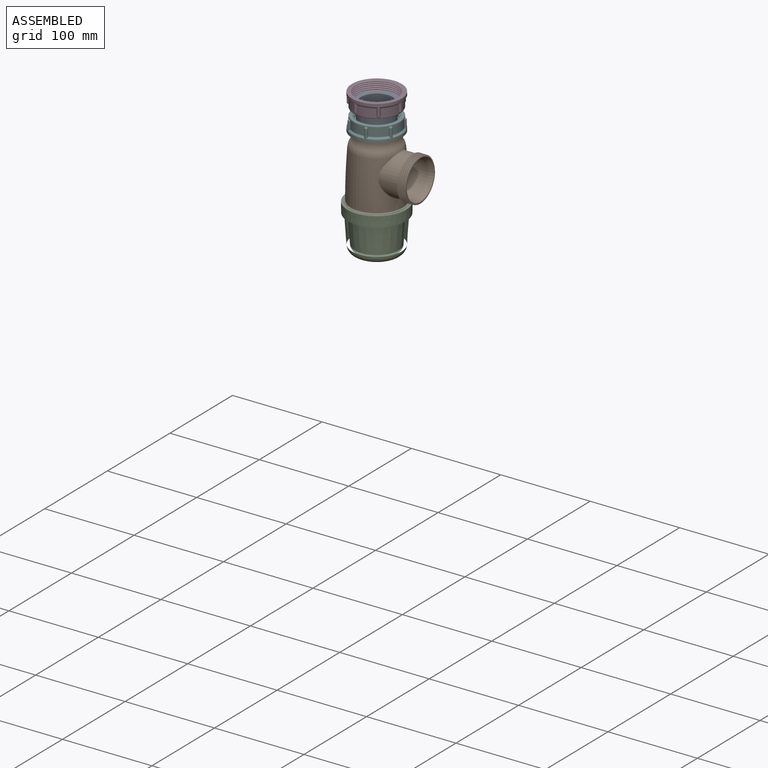
[diagram: assembled view]
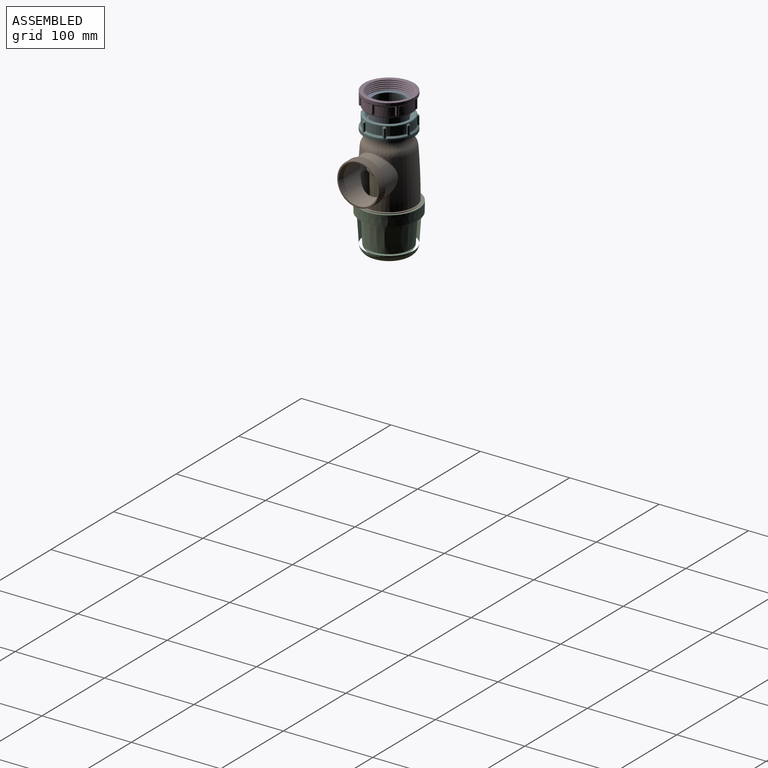
[diagram: assembled view, second angle]
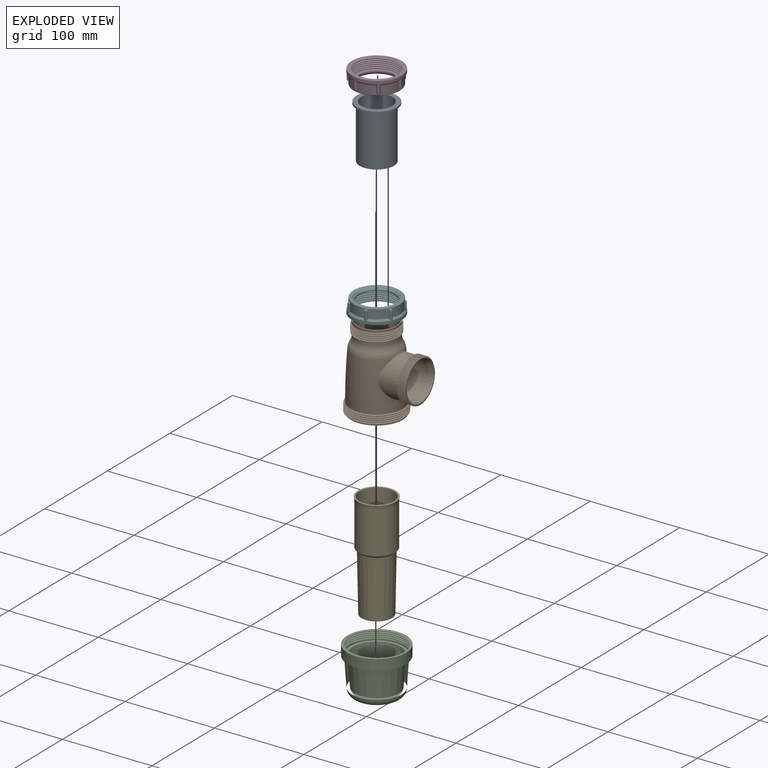
[diagram: exploded view]
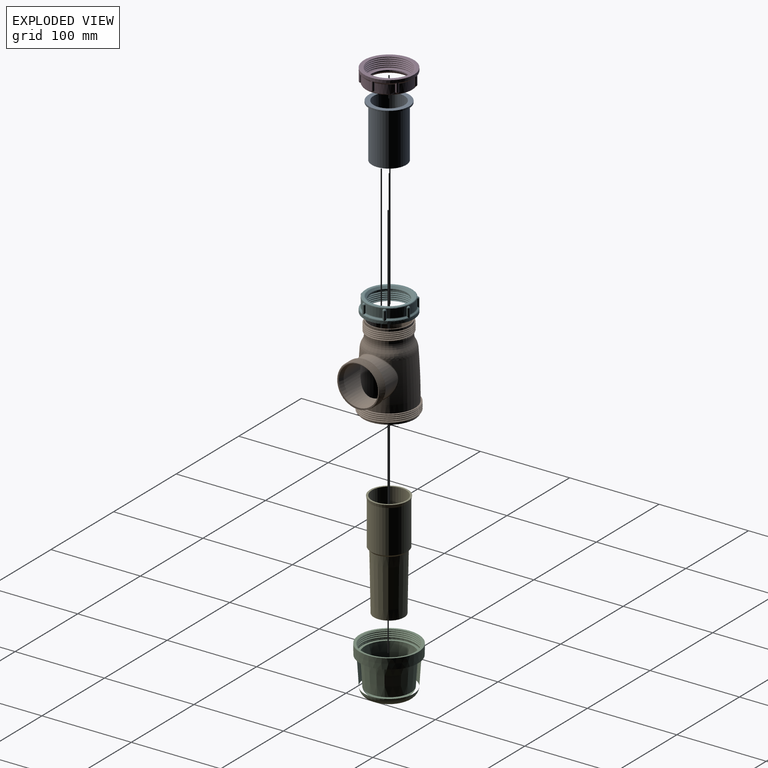
[diagram: exploded view, second angle]
ASSEMBLY  parts=6 mates=5
PART A: 6 faces, bbox 45x45x60 mm
  f0: cylinder r=19.15mm len=58.18mm, axis (0,0,-1), area 7000.9mm2, adj f1,f5
  f1: cone r=17.3mm half-angle=88.9deg, axis (0,0,-1), area 211.9mm2, adj f0,f2
  f2: cylinder r=17.3mm len=60mm, axis (0,0,-1), area 6521.9mm2, adj f1,f3
  f3: plane 45x45mm, normal (0,0,1), area 650.2mm2, adj f2,f4
  f4: cylinder r=22.5mm len=45mm, axis (0,0,-1), area 261.5mm2, adj f3,f5
  f5: plane 45x45mm, normal (0,0,-1), area 438.3mm2, adj f0,f4
PART B: 39 faces, bbox 81.5x71.9x94.5 mm
  f0: revolved ~53.8x52.85mm, area 9498.5mm2, adj f1,f10,f37
  f1: torus R=9.88mm, axis (0,0,-1), area 993.4mm2, adj f0,f11,f38
  f2: torus R=12.93mm, axis (0,0,-1), area 1052.4mm2, adj f3,f19,f36
  f3: revolved ~58x58mm, area 10173.7mm2, adj f2,f5,f35
  f4: plane 48.23x48.11mm, normal (0,0,-1), area 106.7mm2, adj f17,f18,f23,f24,f25
  f5: plane 60.86x60.76mm, normal (0,0,1), area 209mm2, adj f3,f6,f20,f21,f22
  f6: cylinder r=30.75mm len=61.5mm, axis (0,0,-1), area 231.9mm2, adj f5,f7,f21,f22
  f7: plane 61.07x60.96mm, normal (0,0,-1), area 209.1mm2, adj f6,f8,f20,f21,f22
  f8: cylinder r=29mm len=58mm, axis (0,0,-1), area 328mm2, adj f7,f9
  f9: plane 58x58mm, normal (0,0,-1), area 377.2mm2, adj f8,f10
  f10: cylinder r=26.85mm len=53.7mm, axis (0,0,-1), area 1889.5mm2, adj f0,f9
  f11: torus R=36.44mm, axis (0,0,-1), area 1045.3mm2, adj f1,f12
  f12: cylinder r=21.3mm len=42.6mm, axis (0,0,-1), area 1561.9mm2, adj f11,f13
  f13: cone r=22mm half-angle=11.5deg, axis (0,0,1), area 476.1mm2, adj f12,f14
  f14: plane 46x46mm, normal (0,0,1), area 141.4mm2, adj f13,f15
  f15: cylinder r=23mm len=46mm, axis (0,0,-1), area 361.3mm2, adj f14,f16
  f16: plane 48.34x48.32mm, normal (0,0,1), area 106.6mm2, adj f15,f17,f23,f24,f25
  f17: cylinder r=24.35mm len=48.7mm, axis (0,0,-1), area 186.9mm2, adj f4,f16,f24,f25
  f18: cylinder r=23mm len=46mm, axis (0,0,-1), area 433.5mm2, adj f4,f19
  f19: torus R=37.11mm, axis (0,0,-1), area 1137mm2, adj f2,f18
  f20: bspline ~68.51x59.34mm, area 489.1mm2, adj f5,f7,f21,f22
  f21: bspline ~71.01x61.5mm, area 1114.9mm2, adj f5,f6,f7,f20
  f22: bspline ~71.01x61.5mm, area 1114mm2, adj f5,f6,f7,f20
  f23: bspline ~53.74x46.54mm, area 391.3mm2, adj f4,f16,f24,f25
  f24: bspline ~56.24x48.7mm, area 898.9mm2, adj f4,f16,f17,f23
  f25: bspline ~56.24x48.7mm, area 896.9mm2, adj f4,f16,f17,f23
  f26: cylinder r=22.25mm len=44.5mm, axis (1,0,0), area 2151.9mm2, adj f29,f35,f36
  f27: cylinder r=20.35mm len=40.7mm, axis (1,0,0), area 2748.8mm2, adj f30,f37,f38
  f28: cylinder r=23.85mm len=47.7mm, axis (1,0,0), area 190.9mm2, adj f29,f31,f33,f34
  f29: plane 47.18x47.07mm, normal (-1,0,0), area 139.5mm2, adj f26,f28,f32,f33,f34
  f30: cone r=22.05mm half-angle=17.4deg, axis (1,0,0), area 759.3mm2, adj f27,f31
  f31: plane 47.18x47.07mm, normal (1,0,0), area 167.3mm2, adj f28,f30,f32,f33,f34
  f32: bspline ~52.58x45.54mm, area 399.6mm2, adj f29,f31,f33,f34
  f33: bspline ~55.08x47.7mm, area 915.3mm2, adj f28,f29,f31,f32
  f34: bspline ~55.08x47.7mm, area 915.9mm2, adj f28,f29,f31,f32
  f35: bspline ~44.91x43.78mm, area 135mm2, adj f3,f26,f36
  f36: bspline ~23.25x4.44mm, area 28.6mm2, adj f2,f26,f35
  f37: bspline ~41.88x41.13mm, area 137.2mm2, adj f0,f27,f38
  f38: bspline ~14.29x2.16mm, area 15.5mm2, adj f1,f27,f37
PART C: 23 faces, bbox 66.6x72.3x53.7 mm
  f0: plane 66.61x66.61mm, normal (0,0,1), area 518.8mm2, adj f1,f9,f10,f11,f17
  f1: cone r=32.85mm half-angle=0.7deg, axis (0,0,1), area 2368.4mm2, adj f0,f2
  f2: plane 65.4x65.4mm, normal (0,0,-1), area 531.8mm2, adj f1,f3
  f3: cone r=30mm half-angle=3.9deg, axis (0,0,1), area 5824.4mm2, adj f2,f4
  f4: torus R=18.7mm, axis (0,0,-1), area 2097.7mm2, adj f3,f5
  f5: plane 37.39x37.39mm, normal (0,0,-1), area 1098.1mm2, adj f4
  f6: bspline ~61.41x61.16mm, area 127.1mm2, adj f8,f10,f12,f13,f18
  f7: bspline ~61.41x61.16mm, area 127.1mm2, adj f8,f9,f12,f18
  f8: bspline ~61.6x61.34mm, area 55.3mm2, adj f6,f7,f11,f18
  f9: bspline ~71.2x61.67mm, area 914.5mm2, adj f0,f7,f11,f13,f14,f15,f16
  f10: bspline ~71.2x61.67mm, area 810.2mm2, adj f0,f6,f11,f14,f15,f16,f17
  f11: bspline ~71.41x61.85mm, area 203.8mm2, adj f0,f8,f9,f10
  f12: cylinder r=29.75mm len=59.5mm, axis (0,0,1), area 241mm2, adj f6,f7,f13,f18,f22
  f13: cylinder r=29.75mm len=59.5mm, axis (0,0,1), area 147.4mm2, adj f6,f9,f12,f14
  f14: cylinder r=29.75mm len=59.5mm, axis (0,0,1), area 93.4mm2, adj f9,f10,f13,f15
  f15: cylinder r=29.75mm len=59.5mm, axis (0,0,1), area 93.5mm2, adj f9,f10,f14,f16
  f16: cylinder r=29.75mm len=59.5mm, axis (0,0,1), area 93.5mm2, adj f9,f10,f15,f17
  f17: cylinder r=29.75mm len=29.75mm, axis (0,0,1), area 11.7mm2, adj f0,f10,f16
  f18: plane 0.35x0.15mm, normal (0,-1,0), area 0mm2, adj f6,f7,f8,f12
  f19: plane 37.39x37.39mm, normal (0,0,1), area 1098.1mm2, adj f20
  f20: torus R=18.7mm, axis (0,0,-1), area 1240mm2, adj f19,f21
  f21: cone r=24.56mm half-angle=3.9deg, axis (0,0,1), area 5387.5mm2, adj f20,f22
  f22: plane 59.5x59.5mm, normal (0,0,1), area 515.7mm2, adj f12,f21
PART D: 56 faces, bbox 61.3x61.3x17.9 mm
  f0: cylinder r=26mm len=52mm, axis (0,0,-1), area 1340.6mm2, adj f1,f4,f7,f10,f13,f17,f32,f33
  f1: torus R=27mm, axis (0,0,-1), area 18.3mm2, adj f0,f3,f35,f47
  f2: torus R=26.85mm, axis (0,0,1), area 21.9mm2, adj f3,f25,f35,f47
  f3: cone r=27.85mm half-angle=52.9deg, axis (0,0,-1), area 28mm2, adj f1,f2,f35,f47
  f4: torus R=27mm, axis (0,0,-1), area 18.3mm2, adj f0,f24,f45,f47
  f5: torus R=26.85mm, axis (0,0,1), area 21.9mm2, adj f24,f25,f45,f47
  f6: cone r=27.85mm half-angle=52.9deg, axis (0,0,-1), area 28mm2, adj f7,f8,f43,f45
  f7: torus R=27mm, axis (0,0,-1), area 18.3mm2, adj f0,f6,f43,f45
  f8: torus R=26.85mm, axis (0,0,1), area 21.9mm2, adj f6,f25,f43,f45
  f9: cone r=27.85mm half-angle=52.9deg, axis (0,0,-1), area 28mm2, adj f13,f14,f41,f43
  f10: torus R=27mm, axis (0,0,-1), area 18.3mm2, adj f0,f12,f39,f41
  f11: torus R=26.85mm, axis (0,0,1), area 21.9mm2, adj f12,f25,f39,f41
  f12: cone r=27.85mm half-angle=52.9deg, axis (0,0,-1), area 28mm2, adj f10,f11,f39,f41
  f13: torus R=27mm, axis (0,0,-1), area 18.3mm2, adj f0,f9,f41,f43
  f14: torus R=26.85mm, axis (0,0,1), area 21.9mm2, adj f9,f25,f41,f43
  f15: cone r=27.85mm half-angle=52.9deg, axis (0,0,-1), area 28mm2, adj f17,f18,f37,f39
  f16: cone r=27.85mm half-angle=52.9deg, axis (0,0,-1), area 28mm2, adj f33,f34,f35,f37
  f17: torus R=27mm, axis (0,0,-1), area 18.3mm2, adj f0,f15,f37,f39
  f18: torus R=26.85mm, axis (0,0,1), area 21.9mm2, adj f15,f25,f37,f39
  f19: plane 56.49x56.49mm, normal (0,0,-1), area 652.2mm2, adj f25,f26,f27,f28,f29
  f20: plane 48.6x48.44mm, normal (0,0,-1), area 508.8mm2, adj f21,f26,f27,f28,f29
  f21: cylinder r=20.15mm len=40.3mm, axis (0,0,-1), area 156.5mm2, adj f20,f30
  f22: cone r=20.15mm half-angle=45deg, axis (0,0,1), area 334.3mm2, adj f30,f31
  f23: plane 50x50mm, normal (0,0,1), area 314mm2, adj f31,f32
  f24: cone r=27.85mm half-angle=52.9deg, axis (0,0,-1), area 28mm2, adj f4,f5,f45,f47
  f25: cylinder r=27.85mm len=55.7mm, axis (0,0,-1), area 542.9mm2, adj f2,f5,f8,f11,f14,f18,f19,f34
  f26: bspline ~56.43x48.87mm, area 1135.1mm2, adj f19,f20,f28,f29
  f27: bspline ~56.43x48.87mm, area 1135.1mm2, adj f19,f20,f28,f29
  f28: bspline ~56.64x49.05mm, area 269.7mm2, adj f19,f20,f26,f27
  f29: cylinder r=23.35mm len=46.7mm, axis (0,0,1), area 455.7mm2, adj f19,f20,f26,f27
  f30: torus R=21.15mm, axis (0,0,1), area 99.9mm2, adj f21,f22
  f31: torus R=22.91mm, axis (0,0,1), area 111.2mm2, adj f22,f23
  f32: torus R=25mm, axis (0,0,1), area 253mm2, adj f0,f23
  f33: torus R=27mm, axis (0,0,-1), area 18.3mm2, adj f0,f16,f35,f37
  f34: torus R=26.85mm, axis (0,0,1), area 21.9mm2, adj f16,f25,f35,f37
  f35: cylinder r=1.85mm len=9.9mm, axis (0,0,1), area 53.1mm2, adj f0,f1,f2,f3,f16,f33,f34,f54
  f36: plane 1.5x1.25mm, normal (0,0,1), area 0.1mm2, adj f0,f54
  f37: cylinder r=1.85mm len=9.9mm, axis (0,0,1), area 53.1mm2, adj f0,f15,f16,f17,f18,f33,f34,f55
  f38: plane 0.45x0.41mm, normal (0,0,1), area 0.1mm2, adj f0,f55
  f39: cylinder r=1.85mm len=9.9mm, axis (0,0,1), area 53.1mm2, adj f0,f10,f11,f12,f15,f17,f18,f49
  f40: plane 0.49x0.31mm, normal (0,0,1), area 0.1mm2, adj f0,f49
  f41: cylinder r=1.85mm len=9.9mm, axis (0,0,1), area 53.1mm2, adj f0,f9,f10,f11,f12,f13,f14,f50
  f42: plane 0.48x0.36mm, normal (0,0,1), area 0.1mm2, adj f0,f50
  f43: cylinder r=1.85mm len=9.9mm, axis (0,0,1), area 53.1mm2, adj f0,f6,f7,f8,f9,f13,f14,f51
  f44: plane 0.48x0.36mm, normal (0,0,1), area 0.1mm2, adj f0,f51
  f45: cylinder r=1.85mm len=9.9mm, axis (0,0,1), area 53.1mm2, adj f0,f4,f5,f6,f7,f8,f24,f52
  f46: plane 0.49x0.31mm, normal (0,0,1), area 0.1mm2, adj f0,f52
  f47: cylinder r=1.85mm len=9.9mm, axis (0,0,1), area 53.1mm2, adj f0,f1,f2,f3,f4,f5,f24,f53
  f48: plane 0.45x0.41mm, normal (0,0,1), area 0.1mm2, adj f0,f53
  f49: torus R=0.25mm, axis (0,0,-1), area 10.2mm2, adj f0,f39,f40
  f50: torus R=0.25mm, axis (0,0,-1), area 10.2mm2, adj f0,f41,f42
  f51: torus R=0.25mm, axis (0,0,-1), area 10.2mm2, adj f0,f43,f44
  f52: torus R=0.25mm, axis (0,0,-1), area 10.2mm2, adj f0,f45,f46
  f53: torus R=0.25mm, axis (0,0,-1), area 10.2mm2, adj f0,f47,f48
  f54: torus R=0.25mm, axis (0,0,-1), area 14.1mm2, adj f0,f35,f36
  f55: torus R=0.25mm, axis (0,0,-1), area 10.2mm2, adj f0,f37,f38
PART E: 9 faces, bbox 42.4x42.4x118.8 mm
  f0: plane 42.37x42.37mm, normal (0,0,1), area 257.7mm2, adj f1,f8
  f1: cone r=21.18mm half-angle=11.5deg, axis (0,0,1), area 447.5mm2, adj f0,f2
  f2: cylinder r=20.5mm len=48.15mm, axis (0,0,-1), area 6202.2mm2, adj f1,f3
  f3: cone r=20.5mm half-angle=45deg, axis (0,0,1), area 395.5mm2, adj f2,f4
  f4: cone r=18.2mm half-angle=1.1deg, axis (0,0,1), area 7189.2mm2, adj f3,f5
  f5: plane 34x34mm, normal (0,0,-1), area 103.7mm2, adj f4,f6
  f6: cone r=16mm half-angle=1.1deg, axis (0,0,1), area 7975.1mm2, adj f5,f7
  f7: cone r=17.4mm half-angle=88.9deg, axis (0,0,-1), area 200.7mm2, adj f6,f8
  f8: cylinder r=19.15mm len=42.85mm, axis (0,0,-1), area 5155.5mm2, adj f0,f7
PART F: same geometry as D
PLACE A t=(-14.96,37.75,-7.51)mm
PLACE B t=(-14.96,37.75,-7.51)mm
PLACE C t=(-14.96,37.75,-7.51)mm
PLACE D rot(axis=(0,1,0),180deg) t=(-14.96,37.75,279.03)mm
PLACE E t=(-14.96,37.75,-7.51)mm
PLACE F t=(-14.96,37.75,-7.51)mm
MATE fastened A.f0 <-> D.f0  axis (0,0,-1) through (-14.96,37.75,143.43)mm
MATE fastened B.f1 <-> C.f1  axis (0,0,-1) through (-14.96,37.75,34.49)mm
MATE fastened A.f0 <-> E.f1  axis (0,0,-1) through (-14.96,37.75,85.24)mm
MATE fastened F.f0 <-> E.f1  axis (0,0,-1) through (-14.96,37.75,128.09)mm
MATE fastened F.f0 <-> B.f1  axis (0,0,-1) through (-14.96,37.75,115.99)mm
